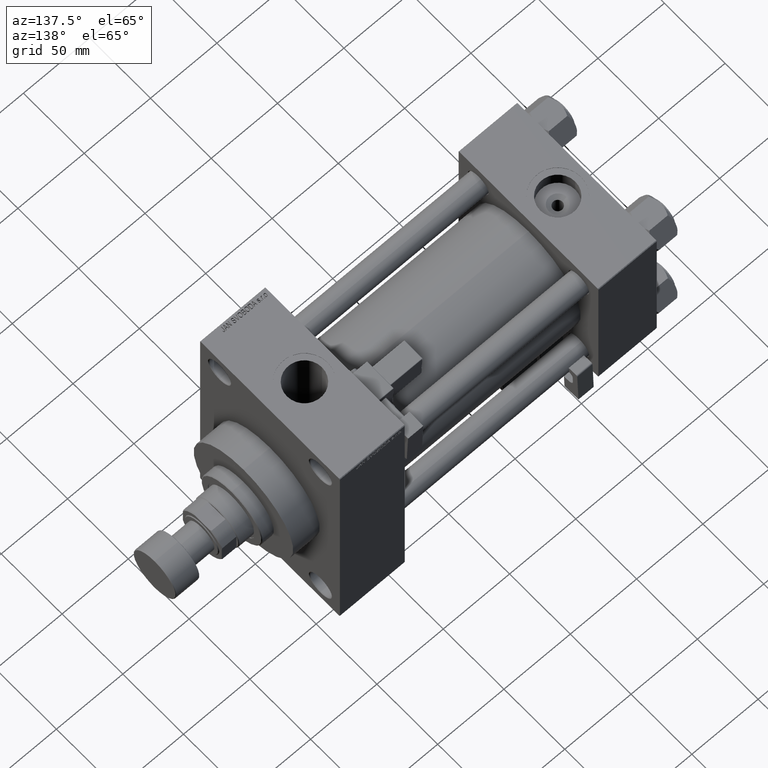
[diagram: clean part render]
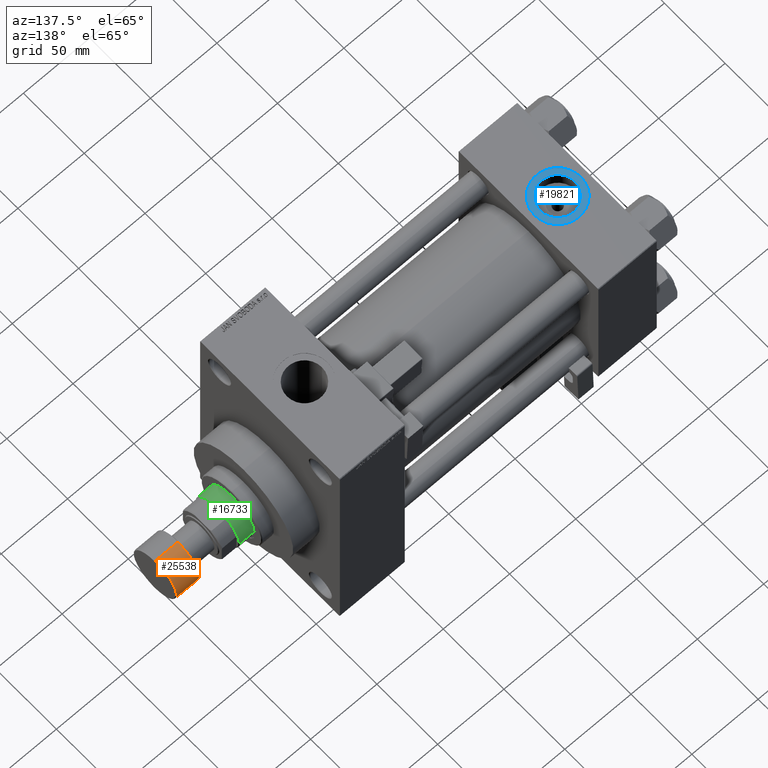
[diagram: same view with three faces highlighted in distinct colors, each labeled with its STEP entity id]
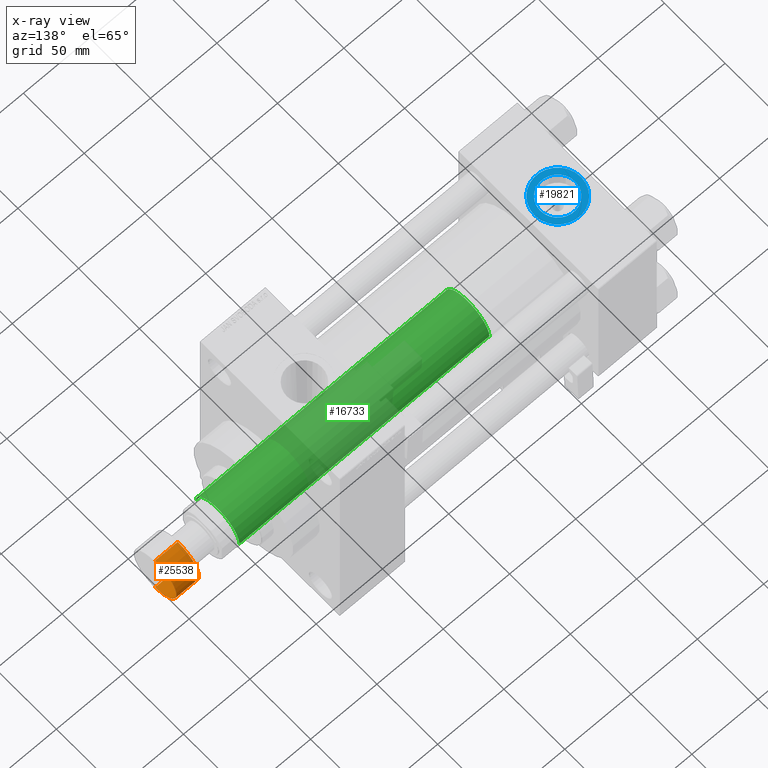
[diagram: x-ray of the same camera — body ghosted, the three highlighted faces saturated]
A machine part, auxiliary view with three faces highlighted in distinct colors.
The next image is the same camera in x-ray (body ghosted, the three faces saturated) — at least one of them is partly hidden behind the body in this view.
Their STEP definitions:

[orange] entity #25538 — the highlighted cylindrical surface (edge-blend (fillet) strip) has radius 17.5 mm, axis along (1, 0, 0).
#180 = DIRECTION ( 'NONE',  ( 0.000000000000000000, 0.000000000000000000, 1.000000000000000000 ) ) ;
#596 = CARTESIAN_POINT ( 'NONE',  ( -17.50000000000000355, 2.143131898507868643E-15, -17.49999999999999645 ) ) ;
#1019 = LINE ( 'NONE', #32570, #1537 ) ;
#1537 = VECTOR ( 'NONE', #16539, 1000.000000000000000 ) ;
#5604 = AXIS2_PLACEMENT_3D ( 'NONE', #46041, #35092, #22364 ) ;
#8171 = AXIS2_PLACEMENT_3D ( 'NONE', #19929, #12044, #15110 ) ;
#8659 = CIRCLE ( 'NONE', #37914, 17.50000000000000355 ) ;
#9400 = CARTESIAN_POINT ( 'NONE',  ( 17.50000000000000355, 0.000000000000000000, -18.00000000000000000 ) ) ;
#12044 = DIRECTION ( 'NONE',  ( 0.000000000000000000, 0.000000000000000000, 1.000000000000000000 ) ) ;
#14153 = VERTEX_POINT ( 'NONE', #23608 ) ;
#15110 = DIRECTION ( 'NONE',  ( 1.000000000000000000, 0.000000000000000000, 0.000000000000000000 ) ) ;
#15765 = VERTEX_POINT ( 'NONE', #21349 ) ;
#16539 = DIRECTION ( 'NONE',  ( 0.000000000000000000, 0.000000000000000000, 1.000000000000000000 ) ) ;
#18618 = VECTOR ( 'NONE', #40451, 1000.000000000000000 ) ;
#18930 = FACE_OUTER_BOUND ( 'NONE', #48145, .T. ) ;
#19526 = DIRECTION ( 'NONE',  ( 1.000000000000000000, 0.000000000000000000, 0.000000000000000000 ) ) ;
#19929 = CARTESIAN_POINT ( 'NONE',  ( 0.000000000000000000, 0.000000000000000000, -18.00000000000000000 ) ) ;
#21048 = CIRCLE ( 'NONE', #5604, 17.50000000000000355 ) ;
#21349 = CARTESIAN_POINT ( 'NONE',  ( 17.50000000000000355, 0.000000000000000000, -0.5000000000000004441 ) ) ;
#22364 = DIRECTION ( 'NONE',  ( 1.000000000000000000, 0.000000000000000000, 0.000000000000000000 ) ) ;
#23608 = CARTESIAN_POINT ( 'NONE',  ( 17.50000000000000355, 0.000000000000000000, -17.49999999999999645 ) ) ;
#25538 = ADVANCED_FACE ( 'NONE', ( #18930 ), #42097, .T. ) ;
#27122 = ORIENTED_EDGE ( 'NONE', *, *, #40454, .T. ) ;
#31811 = LINE ( 'NONE', #9400, #18618 ) ;
#31919 = VERTEX_POINT ( 'NONE', #34929 ) ;
#32331 = EDGE_CURVE ( 'NONE', #14153, #42606, #8659, .T. ) ;
#32570 = CARTESIAN_POINT ( 'NONE',  ( -17.50000000000000355, 2.143131898507868643E-15, -18.00000000000000000 ) ) ;
#34758 = ORIENTED_EDGE ( 'NONE', *, *, #41068, .T. ) ;
#34929 = CARTESIAN_POINT ( 'NONE',  ( -17.50000000000000355, 2.143131898507868643E-15, -0.5000000000000004441 ) ) ;
#35092 = DIRECTION ( 'NONE',  ( -0.000000000000000000, -0.000000000000000000, -1.000000000000000000 ) ) ;
#35303 = CARTESIAN_POINT ( 'NONE',  ( 0.000000000000000000, 0.000000000000000000, -17.49999999999999645 ) ) ;
#37914 = AXIS2_PLACEMENT_3D ( 'NONE', #35303, #180, #19526 ) ;
#40437 = EDGE_CURVE ( 'NONE', #14153, #15765, #31811, .T. ) ;
#40451 = DIRECTION ( 'NONE',  ( 0.000000000000000000, 0.000000000000000000, 1.000000000000000000 ) ) ;
#40454 = EDGE_CURVE ( 'NONE', #42606, #31919, #1019, .T. ) ;
#41068 = EDGE_CURVE ( 'NONE', #31919, #15765, #21048, .T. ) ;
#41950 = ORIENTED_EDGE ( 'NONE', *, *, #40437, .F. ) ;
#42097 = CYLINDRICAL_SURFACE ( 'NONE', #8171, 17.50000000000000355 ) ;
#42606 = VERTEX_POINT ( 'NONE', #596 ) ;
#44479 = ORIENTED_EDGE ( 'NONE', *, *, #32331, .T. ) ;
#46041 = CARTESIAN_POINT ( 'NONE',  ( 0.000000000000000000, 0.000000000000000000, -0.5000000000000004441 ) ) ;
#48145 = EDGE_LOOP ( 'NONE', ( #44479, #27122, #34758, #41950 ) ) ;

[blue] entity #19821 — the highlighted planar face has unit normal (0, 0, 1).
#185 = FACE_BOUND ( 'NONE', #1802, .T. ) ;
#1127 = EDGE_CURVE ( 'NONE', #24405, #3178, #33306, .T. ) ;
#1802 = EDGE_LOOP ( 'NONE', ( #49348, #48847 ) ) ;
#3178 = VERTEX_POINT ( 'NONE', #5839 ) ;
#3522 = DIRECTION ( 'NONE',  ( 0.000000000000000000, 0.000000000000000000, 1.000000000000000000 ) ) ;
#3995 = CARTESIAN_POINT ( 'NONE',  ( 22.00000000000000000, -8.673617379884035472E-15, 57.30000000000000426 ) ) ;
#4030 = DIRECTION ( 'NONE',  ( 1.000000000000000000, 0.000000000000000000, 0.000000000000000000 ) ) ;
#4242 = PLANE ( 'NONE',  #49412 ) ;
#5839 = CARTESIAN_POINT ( 'NONE',  ( 35.21999999999999886, -8.673617379884035472E-15, 57.30000000000000426 ) ) ;
#6119 = CARTESIAN_POINT ( 'NONE',  ( 4.499999999999997335, -6.530485481376167224E-15, 57.30000000000000426 ) ) ;
#8145 = AXIS2_PLACEMENT_3D ( 'NONE', #35341, #3522, #31012 ) ;
#12158 = AXIS2_PLACEMENT_3D ( 'NONE', #31737, #27439, #31486 ) ;
#15257 = ORIENTED_EDGE ( 'NONE', *, *, #30106, .T. ) ;
#15805 = EDGE_LOOP ( 'NONE', ( #15257, #37893 ) ) ;
#15951 = FACE_OUTER_BOUND ( 'NONE', #15805, .T. ) ;
#18791 = VERTEX_POINT ( 'NONE', #34596 ) ;
#19136 = CIRCLE ( 'NONE', #47582, 17.50000000000000000 ) ;
#19821 = ADVANCED_FACE ( 'NONE', ( #185, #15951 ), #4242, .T. ) ;
#24405 = VERTEX_POINT ( 'NONE', #44963 ) ;
#27439 = DIRECTION ( 'NONE',  ( 0.000000000000000000, 0.000000000000000000, 1.000000000000000000 ) ) ;
#27715 = DIRECTION ( 'NONE',  ( 0.000000000000000000, 0.000000000000000000, 1.000000000000000000 ) ) ;
#30106 = EDGE_CURVE ( 'NONE', #18791, #34242, #19136, .T. ) ;
#31012 = DIRECTION ( 'NONE',  ( 1.000000000000000000, 0.000000000000000000, 0.000000000000000000 ) ) ;
#31152 = AXIS2_PLACEMENT_3D ( 'NONE', #31264, #31508, #4030 ) ;
#31264 = CARTESIAN_POINT ( 'NONE',  ( 22.00000000000000000, -8.673617379884035472E-15, 57.30000000000000426 ) ) ;
#31486 = DIRECTION ( 'NONE',  ( 1.000000000000000000, 0.000000000000000000, 0.000000000000000000 ) ) ;
#31508 = DIRECTION ( 'NONE',  ( 0.000000000000000000, 0.000000000000000000, 1.000000000000000000 ) ) ;
#31737 = CARTESIAN_POINT ( 'NONE',  ( 22.00000000000000000, -8.673617379884035472E-15, 57.30000000000000426 ) ) ;
#33306 = CIRCLE ( 'NONE', #8145, 13.22000000000000242 ) ;
#34242 = VERTEX_POINT ( 'NONE', #6119 ) ;
#34596 = CARTESIAN_POINT ( 'NONE',  ( 39.50000000000000000, -8.673617379884035472E-15, 57.30000000000000426 ) ) ;
#35108 = CARTESIAN_POINT ( 'NONE',  ( 22.00000000000000000, -8.673617379884035472E-15, 57.30000000000000426 ) ) ;
#35341 = CARTESIAN_POINT ( 'NONE',  ( 22.00000000000000000, -8.673617379884035472E-15, 57.30000000000000426 ) ) ;
#37647 = CIRCLE ( 'NONE', #31152, 17.50000000000000000 ) ;
#37893 = ORIENTED_EDGE ( 'NONE', *, *, #50200, .T. ) ;
#38546 = EDGE_CURVE ( 'NONE', #3178, #24405, #40594, .T. ) ;
#38917 = DIRECTION ( 'NONE',  ( 1.000000000000000000, 0.000000000000000000, 0.000000000000000000 ) ) ;
#40594 = CIRCLE ( 'NONE', #12158, 13.22000000000000242 ) ;
#44963 = CARTESIAN_POINT ( 'NONE',  ( 8.779999999999994031, -7.054634311411234321E-15, 57.30000000000000426 ) ) ;
#46516 = DIRECTION ( 'NONE',  ( 0.000000000000000000, 0.000000000000000000, 1.000000000000000000 ) ) ;
#46767 = DIRECTION ( 'NONE',  ( 1.000000000000000000, 0.000000000000000000, -0.000000000000000000 ) ) ;
#47582 = AXIS2_PLACEMENT_3D ( 'NONE', #35108, #27715, #38917 ) ;
#48847 = ORIENTED_EDGE ( 'NONE', *, *, #1127, .F. ) ;
#49348 = ORIENTED_EDGE ( 'NONE', *, *, #38546, .F. ) ;
#49412 = AXIS2_PLACEMENT_3D ( 'NONE', #3995, #46516, #46767 ) ;
#50200 = EDGE_CURVE ( 'NONE', #34242, #18791, #37647, .T. ) ;

[green] entity #16733 — the highlighted cylindrical surface (edge-blend (fillet) strip) has radius 18 mm, axis along (-1, 0, 0).
#4112 = CARTESIAN_POINT ( 'NONE',  ( 0.000000000000000000, 0.000000000000000000, 46.00000000000000000 ) ) ;
#4288 = EDGE_CURVE ( 'NONE', #20001, #19252, #36877, .T. ) ;
#5392 = DIRECTION ( 'NONE',  ( -0.000000000000000000, -0.000000000000000000, -1.000000000000000000 ) ) ;
#10023 = AXIS2_PLACEMENT_3D ( 'NONE', #23386, #45557, #11173 ) ;
#11173 = DIRECTION ( 'NONE',  ( 1.000000000000000000, 0.000000000000000000, 0.000000000000000000 ) ) ;
#11262 = EDGE_CURVE ( 'NONE', #20001, #14781, #13829, .T. ) ;
#12246 = DIRECTION ( 'NONE',  ( 0.000000000000000000, 0.000000000000000000, 1.000000000000000000 ) ) ;
#13829 = LINE ( 'NONE', #44394, #39455 ) ;
#14781 = VERTEX_POINT ( 'NONE', #23475 ) ;
#14803 = ORIENTED_EDGE ( 'NONE', *, *, #4288, .T. ) ;
#15477 = EDGE_CURVE ( 'NONE', #31793, #14781, #36327, .T. ) ;
#16483 = EDGE_CURVE ( 'NONE', #19252, #31793, #25307, .T. ) ;
#16733 = ADVANCED_FACE ( 'NONE', ( #28562 ), #47913, .T. ) ;
#16841 = VECTOR ( 'NONE', #17411, 1000.000000000000000 ) ;
#17411 = DIRECTION ( 'NONE',  ( -0.000000000000000000, -0.000000000000000000, -1.000000000000000000 ) ) ;
#19252 = VERTEX_POINT ( 'NONE', #49250 ) ;
#20001 = VERTEX_POINT ( 'NONE', #41366 ) ;
#23386 = CARTESIAN_POINT ( 'NONE',  ( 0.000000000000000000, 0.000000000000000000, 234.5000000000000000 ) ) ;
#23475 = CARTESIAN_POINT ( 'NONE',  ( 18.00000000000000000, 2.204364238465235428E-15, 46.00000000000000000 ) ) ;
#24499 = CARTESIAN_POINT ( 'NONE',  ( 0.000000000000000000, 0.000000000000000000, 235.0000000000000000 ) ) ;
#25307 = LINE ( 'NONE', #29118, #16841 ) ;
#26602 = AXIS2_PLACEMENT_3D ( 'NONE', #4112, #12246, #35171 ) ;
#27481 = AXIS2_PLACEMENT_3D ( 'NONE', #24499, #5392, #44096 ) ;
#27793 = ORIENTED_EDGE ( 'NONE', *, *, #11262, .F. ) ;
#28269 = EDGE_LOOP ( 'NONE', ( #27793, #14803, #44533, #44829 ) ) ;
#28562 = FACE_OUTER_BOUND ( 'NONE', #28269, .T. ) ;
#29118 = CARTESIAN_POINT ( 'NONE',  ( -18.00000000000000000, 0.000000000000000000, 235.0000000000000000 ) ) ;
#29352 = DIRECTION ( 'NONE',  ( -0.000000000000000000, -0.000000000000000000, -1.000000000000000000 ) ) ;
#31793 = VERTEX_POINT ( 'NONE', #40542 ) ;
#35171 = DIRECTION ( 'NONE',  ( 1.000000000000000000, 0.000000000000000000, 0.000000000000000000 ) ) ;
#36327 = CIRCLE ( 'NONE', #26602, 18.00000000000000000 ) ;
#36877 = CIRCLE ( 'NONE', #10023, 18.00000000000000000 ) ;
#39455 = VECTOR ( 'NONE', #29352, 1000.000000000000000 ) ;
#40542 = CARTESIAN_POINT ( 'NONE',  ( -18.00000000000000000, 0.000000000000000000, 46.00000000000000000 ) ) ;
#41366 = CARTESIAN_POINT ( 'NONE',  ( 18.00000000000000000, 2.204364238465235428E-15, 234.5000000000000000 ) ) ;
#44096 = DIRECTION ( 'NONE',  ( -1.000000000000000000, 0.000000000000000000, 0.000000000000000000 ) ) ;
#44394 = CARTESIAN_POINT ( 'NONE',  ( 18.00000000000000000, 2.204364238465235428E-15, 235.0000000000000000 ) ) ;
#44533 = ORIENTED_EDGE ( 'NONE', *, *, #16483, .T. ) ;
#44829 = ORIENTED_EDGE ( 'NONE', *, *, #15477, .T. ) ;
#45557 = DIRECTION ( 'NONE',  ( 0.000000000000000000, 0.000000000000000000, -1.000000000000000000 ) ) ;
#47913 = CYLINDRICAL_SURFACE ( 'NONE', #27481, 18.00000000000000000 ) ;
#49250 = CARTESIAN_POINT ( 'NONE',  ( -18.00000000000000000, 0.000000000000000000, 234.5000000000000000 ) ) ;